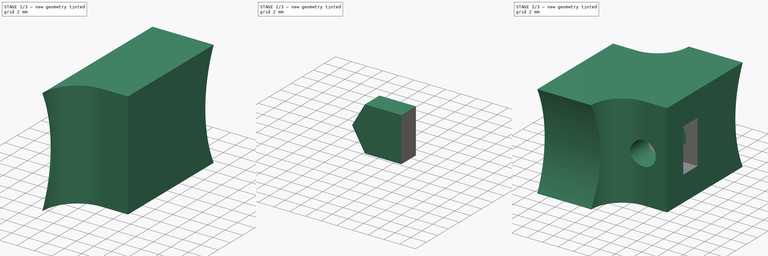
[diagram: build sequence overview — one tinted view per stage of 3, left to right]
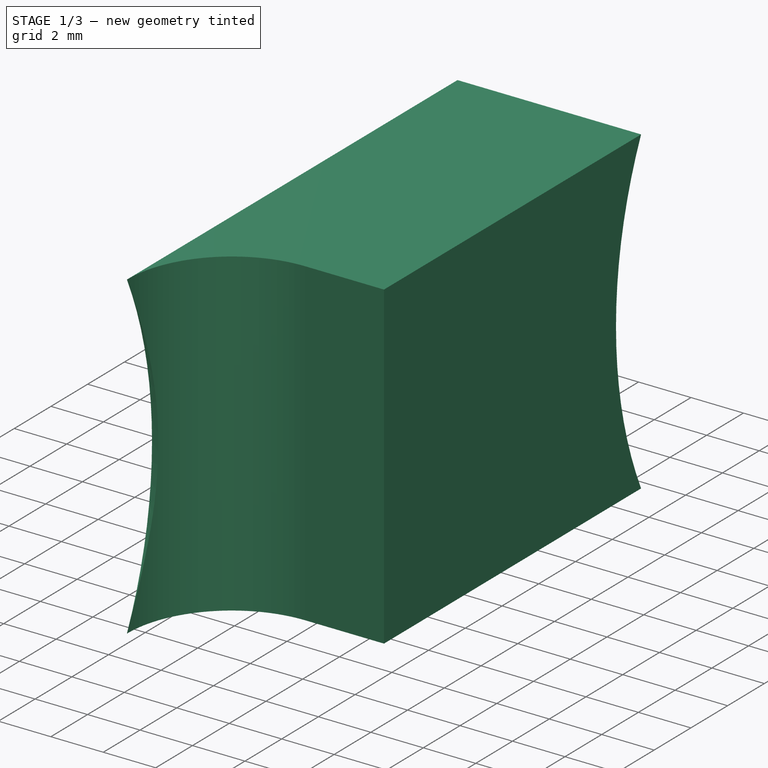
[diagram: stage 1 of 3 — iso view after this stage's code; geometry added in this stage tinted green]
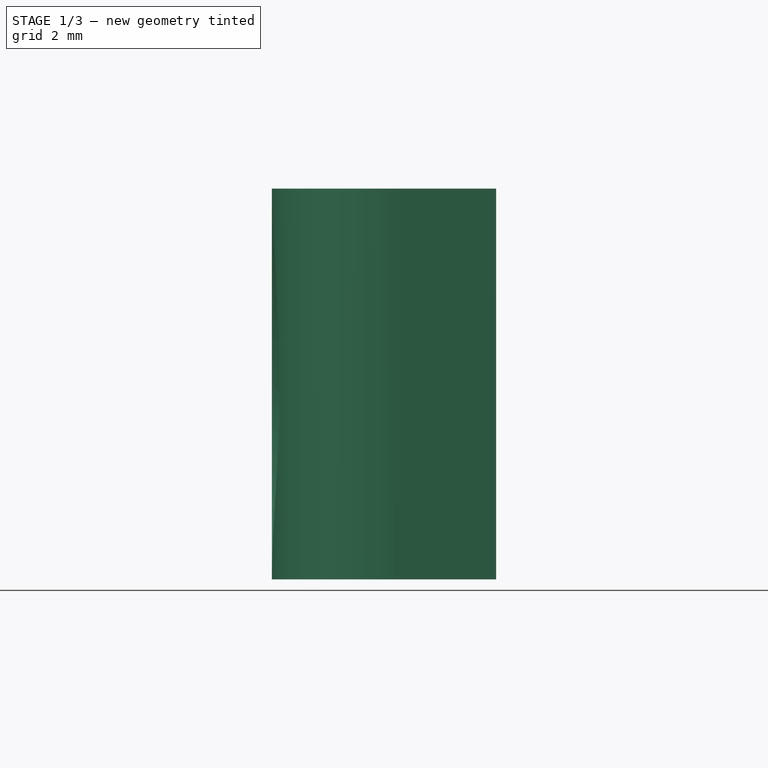
[diagram: stage 1 of 3 — front view after this stage's code; geometry added in this stage tinted green]
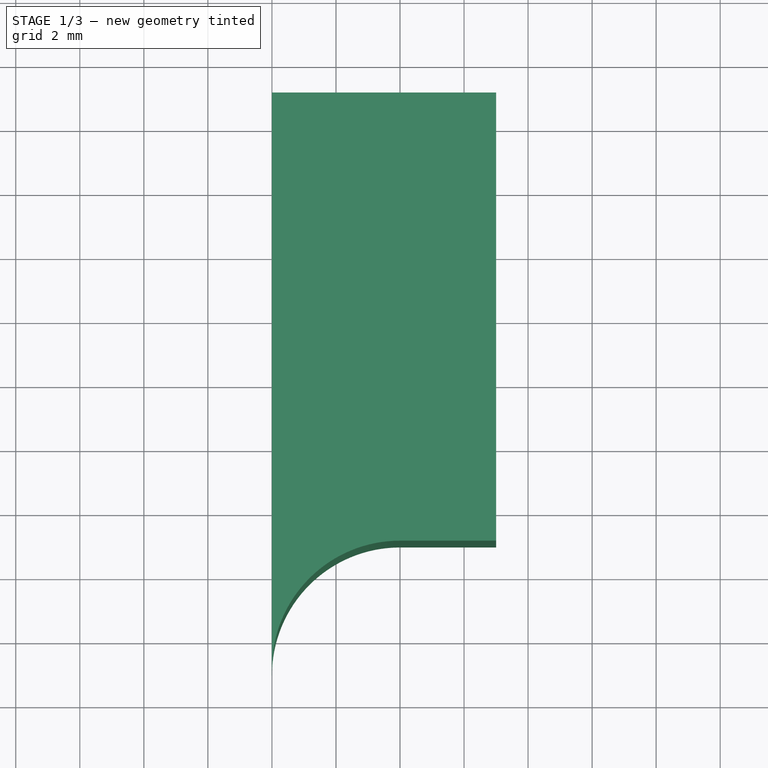
[diagram: stage 1 of 3 — top view after this stage's code; geometry added in this stage tinted green]
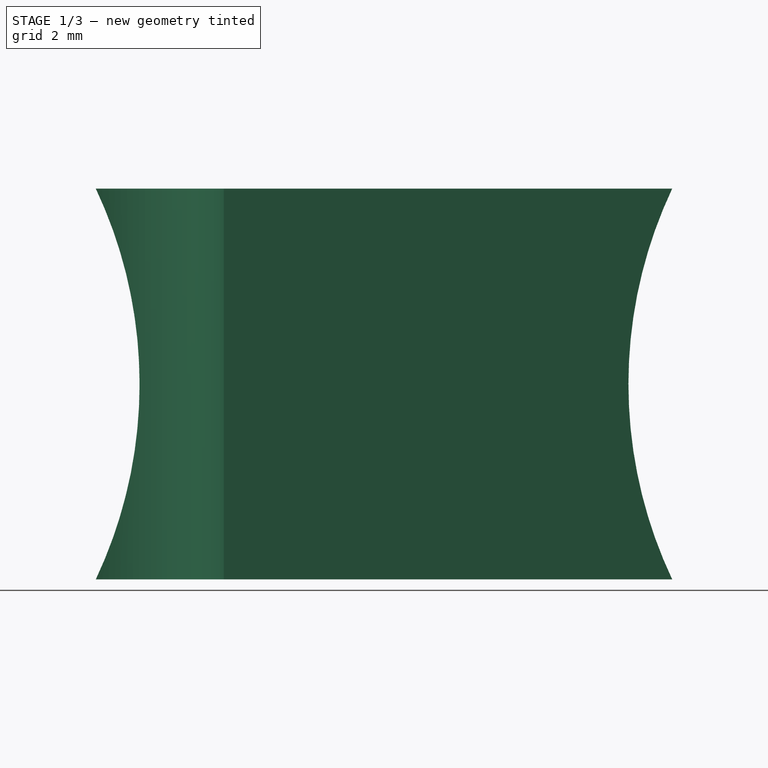
[diagram: stage 1 of 3 — right view after this stage's code; geometry added in this stage tinted green]
FCSTD DOCUMENT  (FreeCAD 0.16RUnknown)
Label: joint-base-u.012
License: All rights reserved
LicenseURL: http://en.wikipedia.org/wiki/All_rights_reserved
objects: Sketcher::SketchObject×4, Part::Extrusion×2, PartDesign::Pocket×2, Part::Cut×1, Part::Feature×1, Part::MultiFuse×1
note: 13 computed .brp shape members not serialized (recipe doc carries the construction recipe); baked Part::Feature solids carry a one-line shape summary decoded from their .brp

FEATURE [Sketcher::SketchObject] Sketch
  sketch-geometry (8):
    g0: LineSegment StartX=0 StartY=0 StartZ=0 EndX=0 EndY=-9 EndZ=0
    g1: LineSegment StartX=7 StartY=-5 StartZ=0 EndX=7 EndY=9 EndZ=0
    g2: LineSegment StartX=7 StartY=9 StartZ=0 EndX=0 EndY=9 EndZ=0
    g3: LineSegment StartX=0 StartY=9 StartZ=0 EndX=0 EndY=0 EndZ=0
    g4: ArcOfCircle CenterX=4 CenterY=-9 CenterZ=0 NormalX=0 NormalY=0 NormalZ=1 Radius=4 StartAngle=1.5708 EndAngle=3.14159
    g5: LineSegment StartX=4 StartY=-5 StartZ=0 EndX=7 EndY=-5 EndZ=0
    g6: LineSegment [constr] StartX=0 StartY=-9 StartZ=0 EndX=4 EndY=-9 EndZ=0
    g7: LineSegment [constr] StartX=4 StartY=-9 StartZ=0 EndX=4 EndY=-5 EndZ=0
  constraints (22):
    c: Vertical(g0)
    c: Vertical(g1)
    c: Coincident(g1,g2)
    c: Horizontal(g2)
    c: Vertical(g3)
    c: Coincident(g0,g3)
    c: Coincident(g0,g-1)
    c: Equal(g0,g3)
    c: DistanceX(g2,g2) = 7
    c: Horizontal(g5)
    c: Coincident(g1,g5)
    c: Coincident(g4,g5)
    c: Horizontal(g6)
    c: Coincident(g6,g7)
    c: Vertical(g7)
    c: Coincident(g4,g7)
    c: Coincident(g4,g6)
    c: Coincident(g4,g6)
    c: Coincident(g0,g4)
    c: DistanceY(g7,g7) = 4
    c: DistanceY(g1,g1) = 14
    c: Coincident(g2,g3)
FEATURE [Part::Extrusion] Extrude
  Base = -> Sketch
  Dir = (0,0,12.2)
  Solid = true
FEATURE [Sketcher::SketchObject] Sketch001
  ExternalGeometry = -> [Extrude]
  Placement = pos=(0,0,0) rot=(0.57735,-0.57735,-0.57735;2.0944rad)
  Support = -> Extrude [Face5]
  sketch-geometry (4):
    g0: LineSegment StartX=-9 StartY=12.2 StartZ=0 EndX=-9 EndY=0 EndZ=0
    g1: LineSegment StartX=9 StartY=12.2 StartZ=0 EndX=9 EndY=0 EndZ=0
    g2: ArcOfCircle CenterX=21.9337 CenterY=6.1 CenterZ=0 NormalX=0 NormalY=0 NormalZ=1 Radius=14.3 StartAngle=2.70089 EndAngle=3.58229
    g3: ArcOfCircle CenterX=-21.9337 CenterY=6.1 CenterZ=0 NormalX=0 NormalY=0 NormalZ=1 Radius=14.3 StartAngle=5.84248 EndAngle=6.72389
  constraints (12):
    c: Vertical(g0)
    c: Vertical(g1)
    c: Coincident(g1,g2)
    c: Coincident(g1,g-3)
    c: Coincident(g1,g2)
    c: Coincident(g1,g-3)
    c: Coincident(g0,g3)
    c: Coincident(g0,g-4)
    c: Coincident(g0,g3)
    c: Coincident(g0,g-4)
    c: Equal(g3,g2)
    c: Radius(g2) = 14.3
FEATURE [PartDesign::Pocket] Pocket
  Length = 5
  Sketch = -> Sketch001
  Type = 1
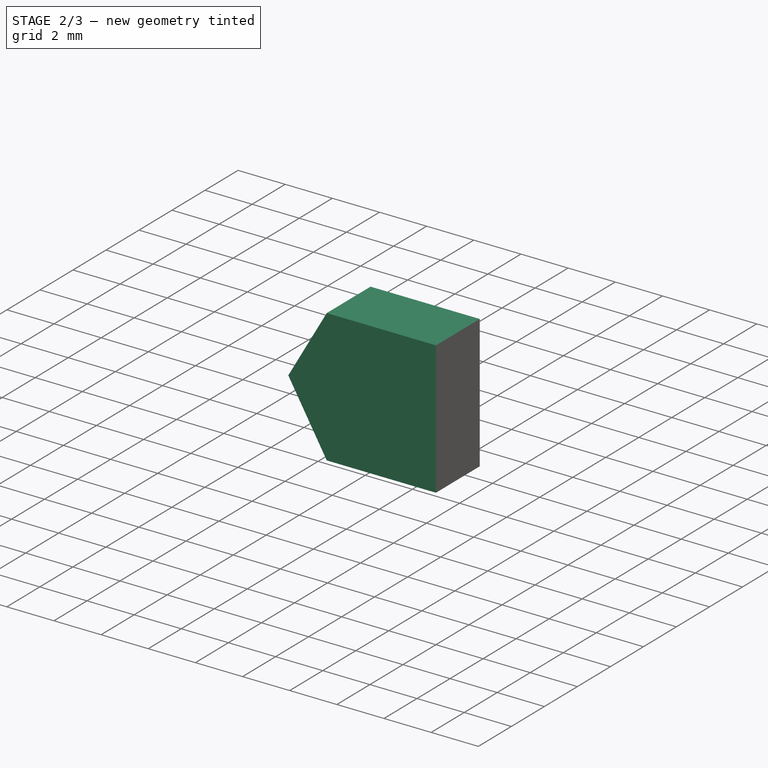
[diagram: stage 2 of 3 — iso view after this stage's code; geometry added in this stage tinted green]
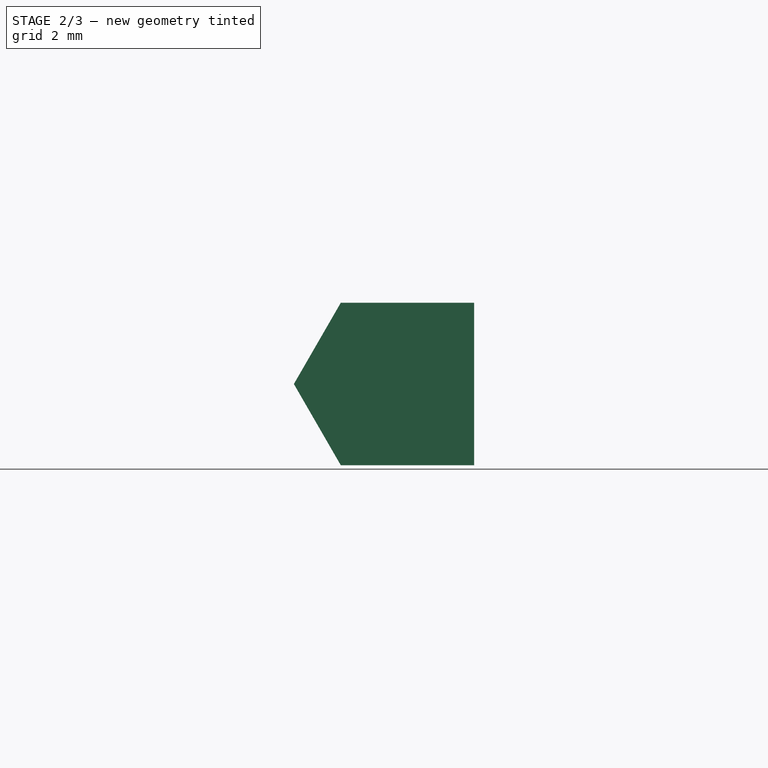
[diagram: stage 2 of 3 — front view after this stage's code; geometry added in this stage tinted green]
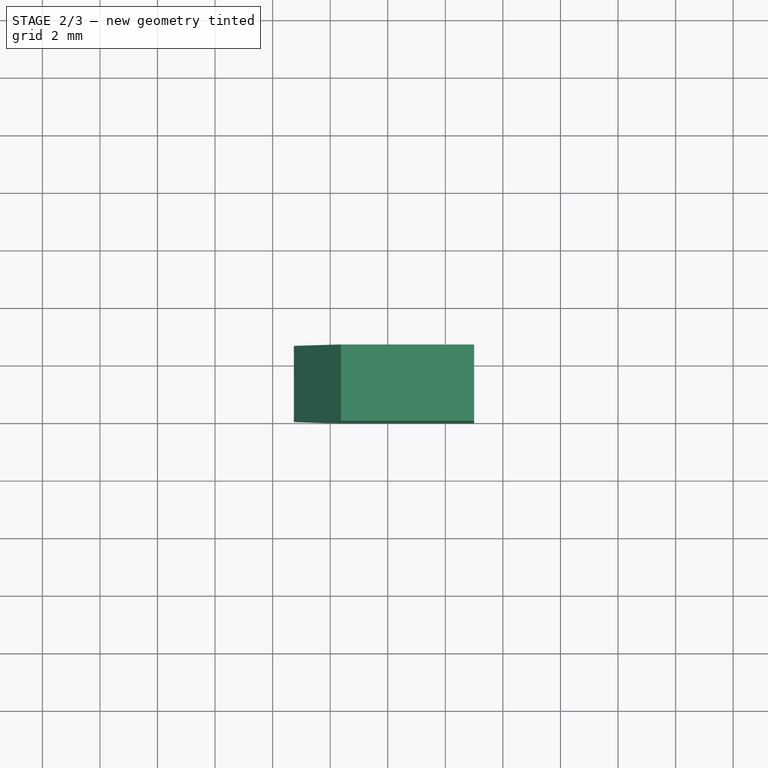
[diagram: stage 2 of 3 — top view after this stage's code; geometry added in this stage tinted green]
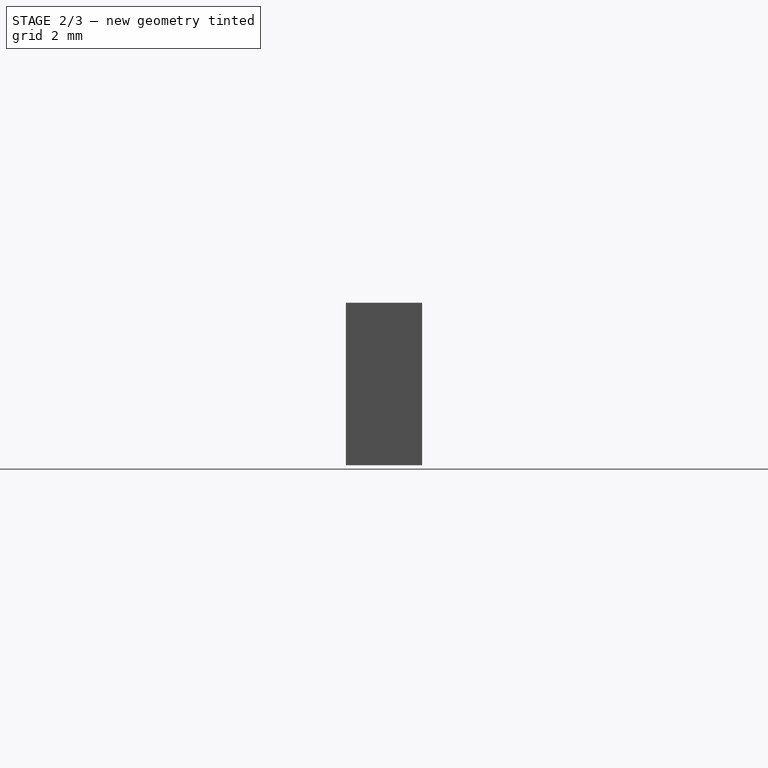
[diagram: stage 2 of 3 — right view after this stage's code; geometry added in this stage tinted green]
FEATURE [Sketcher::SketchObject] Sketch002
  ExternalGeometry = -> [Pocket]
  Placement = pos=(0,-5,0) rot=(1,0,0;1.5708rad)
  Support = -> Pocket [Face1]
  sketch-geometry (3):
    g0: LineSegment [constr] StartX=4 StartY=12.2 StartZ=0 EndX=4 EndY=6.1 EndZ=0
    g1: LineSegment [constr] StartX=4 StartY=6.1 StartZ=0 EndX=4 EndY=0 EndZ=0
    g2: Circle CenterX=4 CenterY=6.1 CenterZ=0 NormalX=0 NormalY=0 NormalZ=1 Radius=1.55
  constraints (8):
    c: Vertical(g0)
    c: Coincident(g0,g1)
    c: Vertical(g1)
    c: Equal(g0,g1)
    c: Coincident(g0,g-3)
    c: Coincident(g1,g-3)
    c: Coincident(g0,g2)
    c: Radius(g2) = 1.55
FEATURE [PartDesign::Pocket] Pocket001
  Length = 14
  Midplane = true
  Sketch = -> Sketch002
  Type = 0
FEATURE [Sketcher::SketchObject] Sketch003
  ExternalGeometry = -> [Pocket001]
  Placement = pos=(0,-5,0) rot=(1,0,0;1.5708rad)
  Support = -> Pocket001 [Face1]
  sketch-geometry (6):
    g0: LineSegment [constr] StartX=4 StartY=6.1 StartZ=0 EndX=0.737971 EndY=6.1 EndZ=0
    g1: LineSegment StartX=0.737971 StartY=6.1 StartZ=0 EndX=2.36899 EndY=8.925 EndZ=0
    g2: LineSegment StartX=2.36899 StartY=8.925 StartZ=0 EndX=7 EndY=8.925 EndZ=0
    g3: LineSegment StartX=7 StartY=8.925 StartZ=0 EndX=7 EndY=3.275 EndZ=0
    g4: LineSegment StartX=7 StartY=3.275 StartZ=0 EndX=2.36899 EndY=3.275 EndZ=0
    g5: LineSegment StartX=2.36899 StartY=3.275 StartZ=0 EndX=0.737971 EndY=6.1 EndZ=0
  constraints (17):
    c: Horizontal(g0)
    c: Coincident(g0,g1)
    c: Coincident(g1,g2)
    c: Horizontal(g2)
    c: Coincident(g2,g3)
    c: Vertical(g3)
    c: Coincident(g3,g4)
    c: Horizontal(g4)
    c: Coincident(g4,g5)
    c: Coincident(g0,g5)
    c: Equal(g4,g2)
    c: Angle(g5,g1) = 2.0944
    c: Coincident(g0,g-3)
    c: Equal(g5,g0)
    c: Equal(g0,g1)
    c: DistanceY(g3,g3) = 5.65
    c: PointOnObject(g2,g-4)
FEATURE [Part::Extrusion] Extrude001
  Base = -> Sketch003
  Dir = (0,2.65,0)
  Placement = pos=(0,3,0) rot=(0,0,1;0rad)
  Solid = true
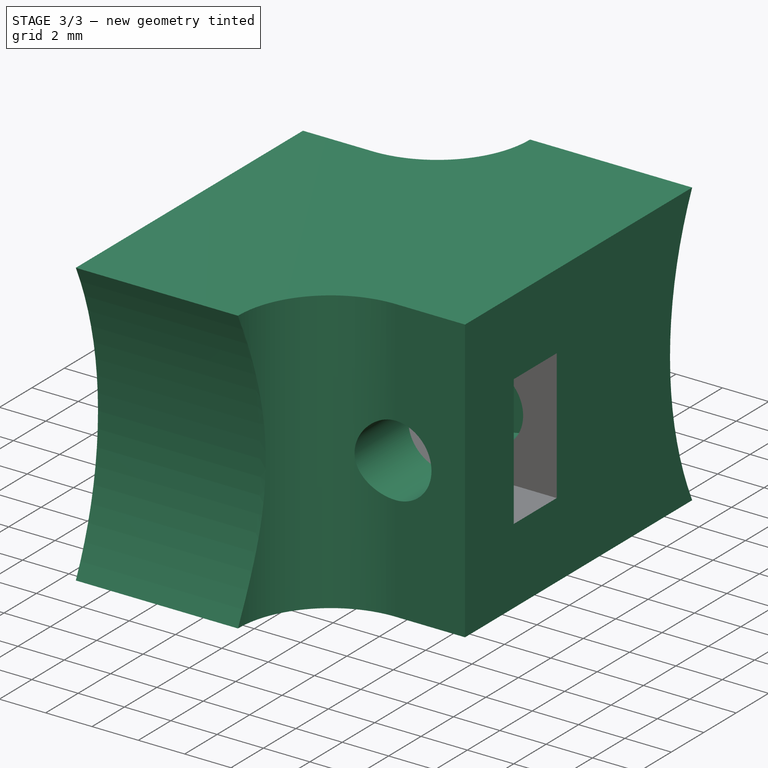
[diagram: stage 3 of 3 — iso view after this stage's code; geometry added in this stage tinted green]
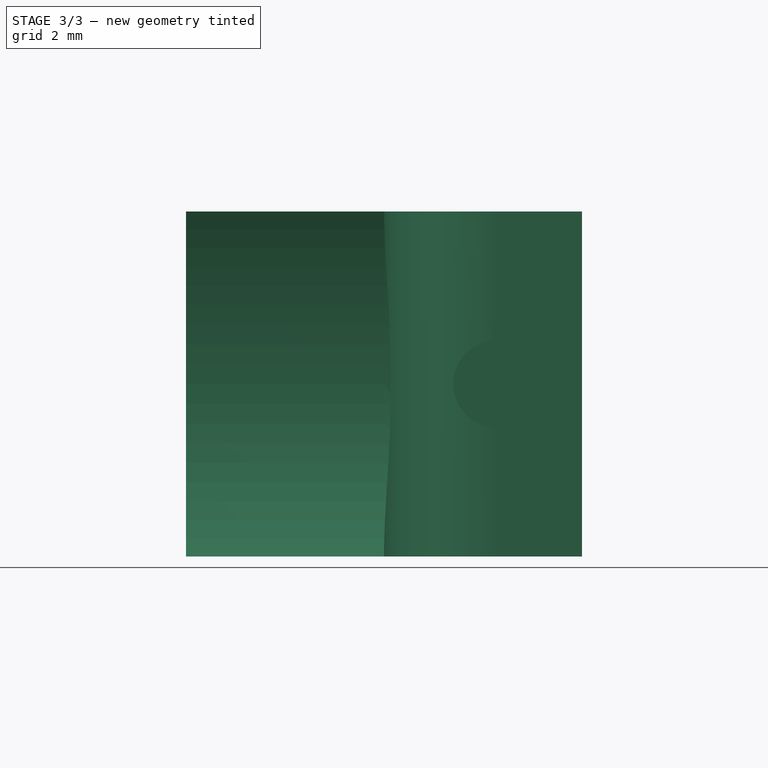
[diagram: stage 3 of 3 — front view after this stage's code; geometry added in this stage tinted green]
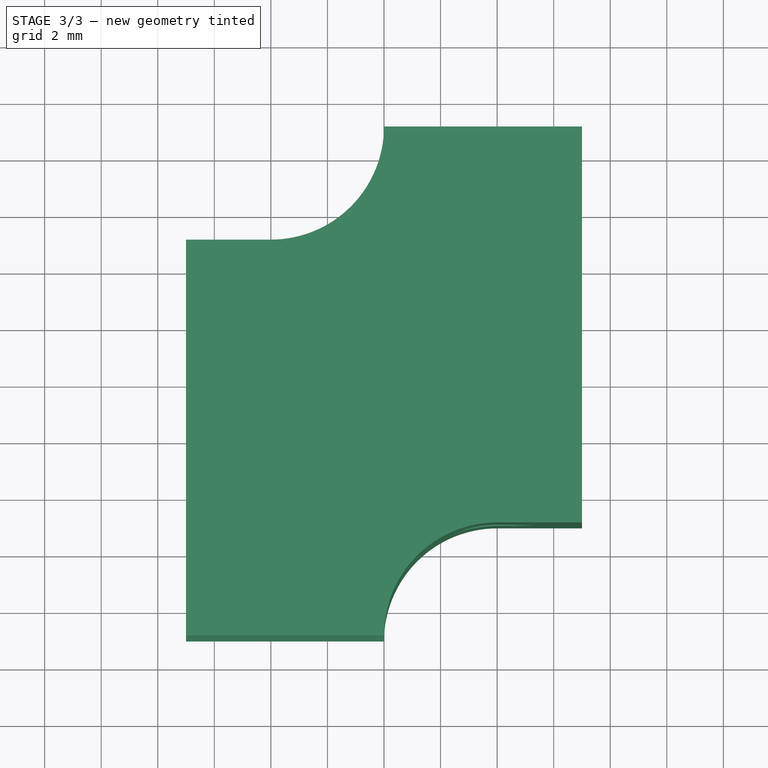
[diagram: stage 3 of 3 — top view after this stage's code; geometry added in this stage tinted green]
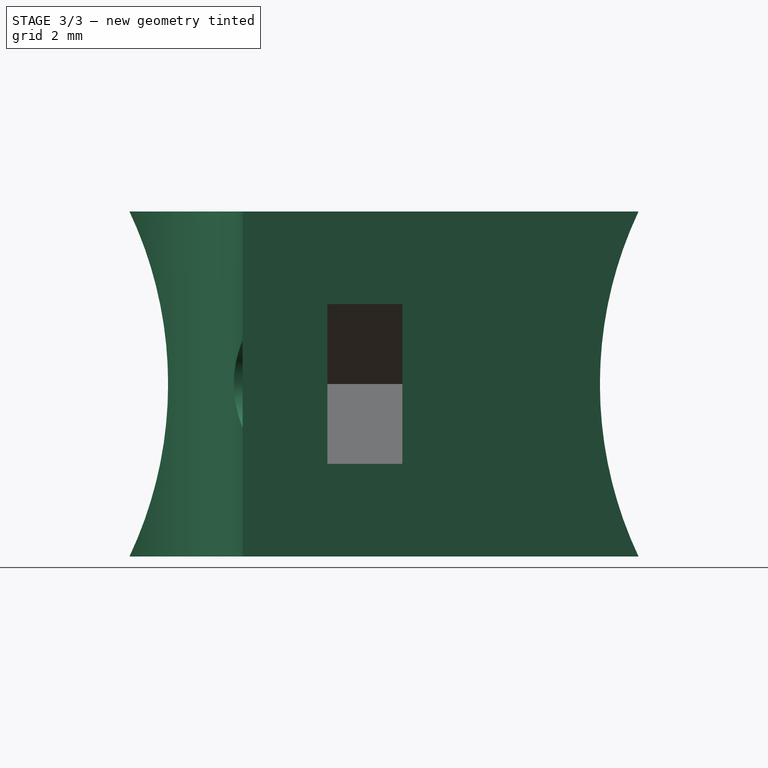
[diagram: stage 3 of 3 — right view after this stage's code; geometry added in this stage tinted green]
FEATURE [Part::Cut] Cut
  Base = -> Pocket001
  Tool = -> Extrude001
FEATURE [Part::Feature] Cut001
  Placement = pos=(0,0,0) rot=(0,0,1;3.14159rad)
  shape: bbox 7 x 18 x 12.2 mm, 18 faces (baked)
FEATURE [Part::MultiFuse] Fusion
  Shapes = -> [Cut,Cut001]
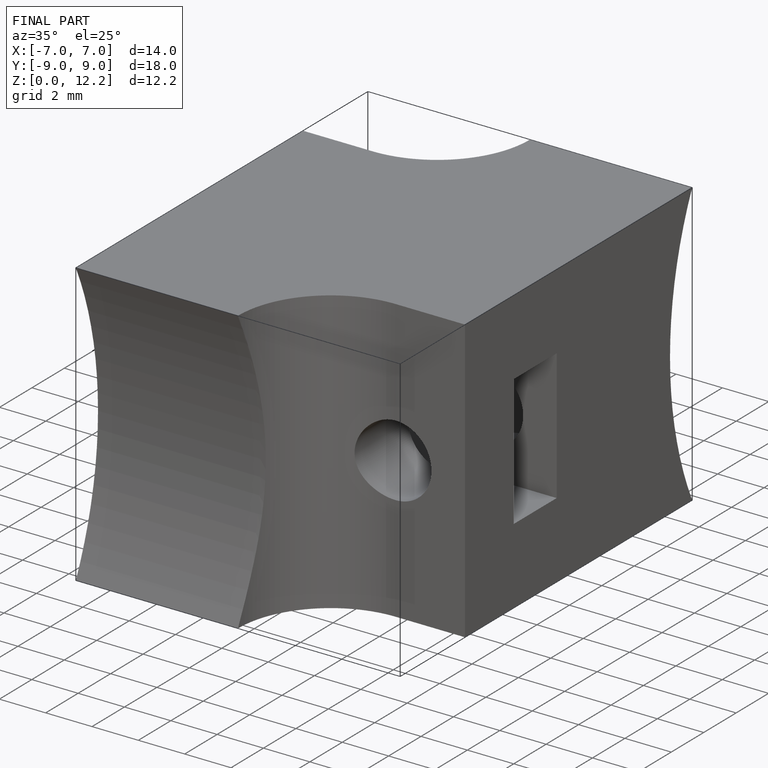
[diagram: finished part — iso view with bounding-box wireframe]
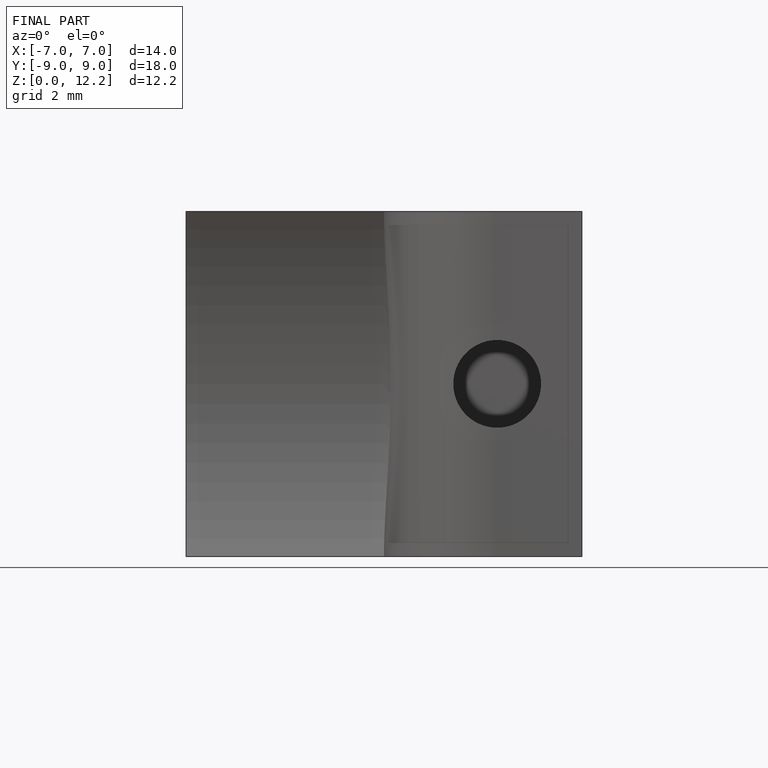
[diagram: finished part — front view with bounding-box wireframe]
